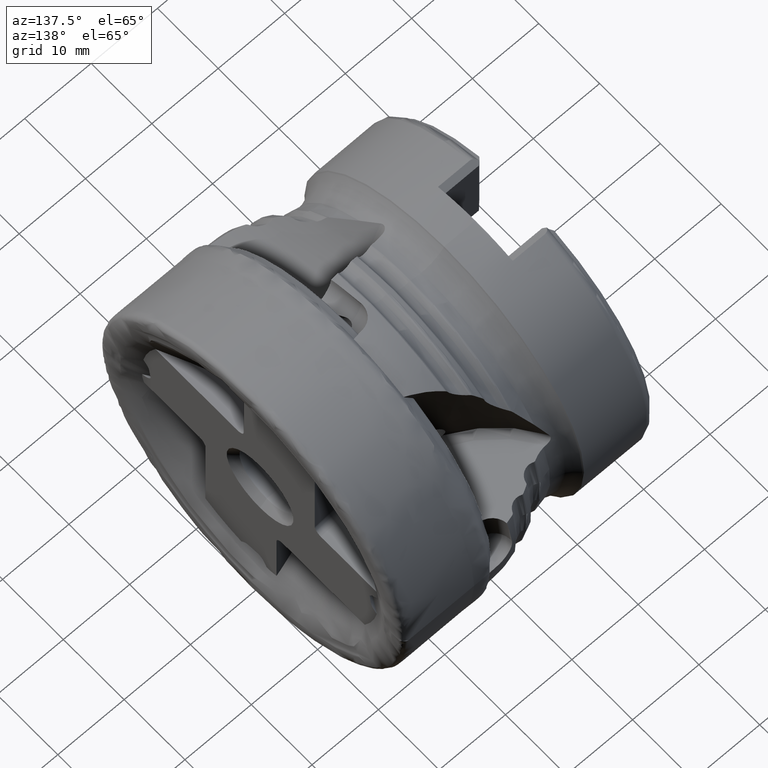
[diagram: clean part render]
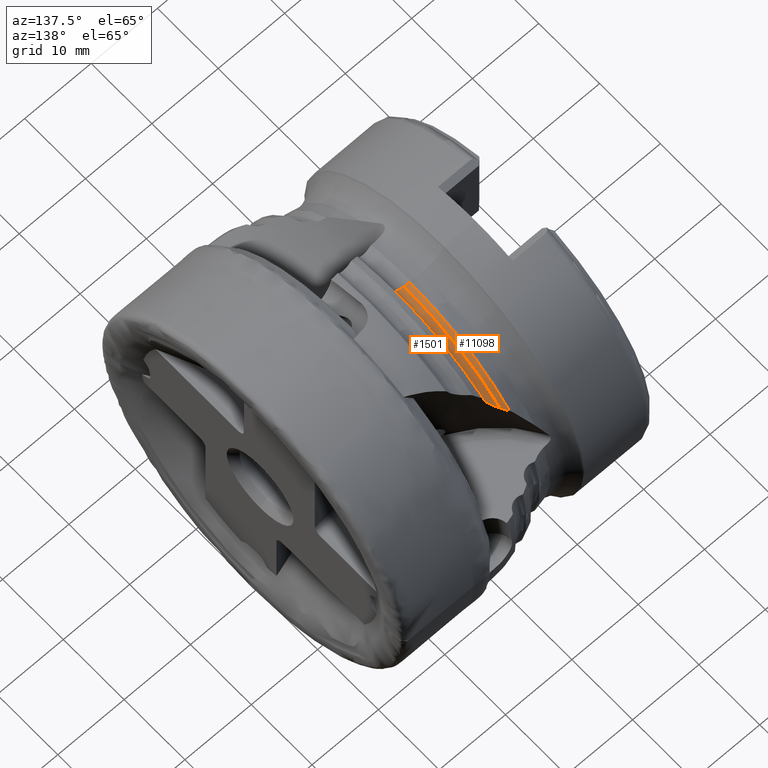
[diagram: same view with one multi-face feature highlighted, each face labeled with its STEP entity id]
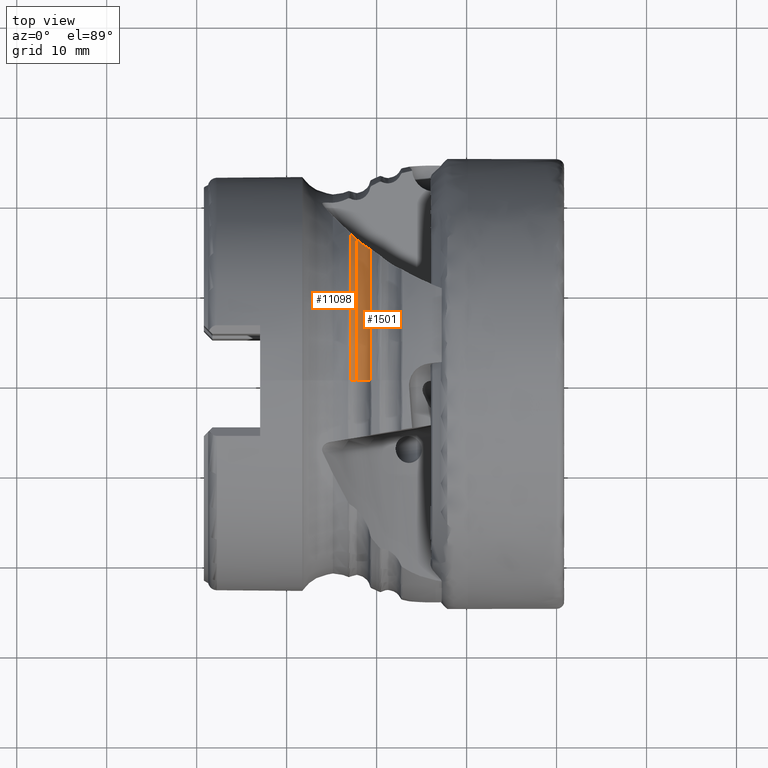
[diagram: same view with one multi-face feature highlighted, each face labeled with its STEP entity id]
A machine part, auxiliary view. The highlighted faces form ONE feature: a constant-radius fillet chain: 2 tangent blend faces with common blend radius 1.5 mm. The faces share edges in the B-rep.
A second angle (top view) of the same feature is appended — it is thin or edge-on in the first view.
Their STEP definitions:
[1] entity #11098 (Torus):
#188 = FACE_OUTER_BOUND ( 'NONE', #13282, .T. ) ;
#808 = CARTESIAN_POINT ( 'NONE',  ( -22.19999999999999900, 0.0000000000000000000, 22.79900556599802300 ) ) ;
#1005 = VERTEX_POINT ( 'NONE', #4658 ) ;
#1975 = VERTEX_POINT ( 'NONE', #5462 ) ;
#2051 = DIRECTION ( 'NONE',  ( 1.000000000000000000, 0.0000000000000000000, 0.0000000000000000000 ) ) ;
#2073 = ORIENTED_EDGE ( 'NONE', *, *, #7056, .T. ) ;
#2421 = ORIENTED_EDGE ( 'NONE', *, *, #10373, .T. ) ;
#2494 = VERTEX_POINT ( 'NONE', #13317 ) ;
#3203 = DIRECTION ( 'NONE',  ( -1.000000000000000000, -0.0000000000000000000, -0.0000000000000000000 ) ) ;
#3331 = CARTESIAN_POINT ( 'NONE',  ( -22.93453963644931500, 16.56865981876186600, 13.68757135744772800 ) ) ;
#4064 = ORIENTED_EDGE ( 'NONE', *, *, #9474, .T. ) ;
#4518 = CIRCLE ( 'NONE', #5979, 21.29900556599798700 ) ;
#4658 = CARTESIAN_POINT ( 'NONE',  ( -22.19999999999999900, 0.0000000000000000000, 21.29900556599798700 ) ) ;
#5462 = CARTESIAN_POINT ( 'NONE',  ( -22.93453963644934000, 0.0000000000000000000, 21.49116325039382500 ) ) ;
#5566 = DIRECTION ( 'NONE',  ( 0.0000000000000000000, 0.0000000000000000000, -1.000000000000000000 ) ) ;
#5979 = AXIS2_PLACEMENT_3D ( 'NONE', #10231, #3203, #13794 ) ;
#6571 = CARTESIAN_POINT ( 'NONE',  ( -22.19999999999934200, 15.81404140105017600, 14.26757627161177000 ) ) ;
#6820 = CARTESIAN_POINT ( 'NONE',  ( -22.93453963644934000, 0.0000000000000000000, 0.0000000000000000000 ) ) ;
#7056 = EDGE_CURVE ( 'NONE', #1005, #2494, #4518, .T. ) ;
#7058 = CARTESIAN_POINT ( 'NONE',  ( -22.19999999999999900, 0.0000000000000000000, 0.0000000000000000000 ) ) ;
#8053 = CIRCLE ( 'NONE', #12745, 21.49116325039383900 ) ;
#8181 = AXIS2_PLACEMENT_3D ( 'NONE', #808, #10034, #5566 ) ;
#8211 = CARTESIAN_POINT ( 'NONE',  ( -22.93453963644931500, 16.56865981876186600, 13.68757135744772800 ) ) ;
#9036 = CIRCLE ( 'NONE', #8181, 1.500000000000036000 ) ;
#9409 = DIRECTION ( 'NONE',  ( -1.000000000000000000, -0.0000000000000000000, -0.0000000000000000000 ) ) ;
#9474 = EDGE_CURVE ( 'NONE', #1975, #1005, #9036, .T. ) ;
#9639 = B_SPLINE_CURVE_WITH_KNOTS ( 'NONE', 3,
 ( #6571, #10345, #11462, #13817, #14970, #3331 ),
 .UNSPECIFIED., .F., .F.,
 ( 4, 2, 4 ),
 ( 0.003385032374731913500, 0.003988127114663701400, 0.004591221854595488500 ),
 .UNSPECIFIED. ) ;
#10034 = DIRECTION ( 'NONE',  ( 0.0000000000000000000, -1.000000000000000000, 0.0000000000000000000 ) ) ;
#10195 = DIRECTION ( 'NONE',  ( 0.0000000000000000000, 0.0000000000000000000, -1.000000000000000000 ) ) ;
#10231 = CARTESIAN_POINT ( 'NONE',  ( -22.19999999999999900, 0.0000000000000000000, 0.0000000000000000000 ) ) ;
#10345 = CARTESIAN_POINT ( 'NONE',  ( -22.31739353824384200, 15.92345183708093800, 14.14630681896281000 ) ) ;
#10373 = EDGE_CURVE ( 'NONE', #2494, #11698, #9639, .T. ) ;
#10532 = DIRECTION ( 'NONE',  ( 0.0000000000000000000, 0.0000000000000000000, 1.000000000000000000 ) ) ;
#10758 = ORIENTED_EDGE ( 'NONE', *, *, #14323, .T. ) ;
#11098 = ADVANCED_FACE ( 'NONE', ( #188 ), #12684, .F. ) ;
#11462 = CARTESIAN_POINT ( 'NONE',  ( -22.43854113096748600, 16.04109678890830900, 14.03355259538699900 ) ) ;
#11698 = VERTEX_POINT ( 'NONE', #8211 ) ;
#12219 = AXIS2_PLACEMENT_3D ( 'NONE', #7058, #9409, #10532 ) ;
#12684 = TOROIDAL_SURFACE ( 'NONE', #12219, 22.79900556599802300, 1.500000000000037100 ) ;
#12745 = AXIS2_PLACEMENT_3D ( 'NONE', #6820, #2051, #10195 ) ;
#13282 = EDGE_LOOP ( 'NONE', ( #4064, #2073, #2421, #10758 ) ) ;
#13317 = CARTESIAN_POINT ( 'NONE',  ( -22.19999999999934200, 15.81404140105017600, 14.26757627161177000 ) ) ;
#13794 = DIRECTION ( 'NONE',  ( 0.0000000000000000000, 0.0000000000000000000, 1.000000000000000000 ) ) ;
#13817 = CARTESIAN_POINT ( 'NONE',  ( -22.68316768060260500, 16.29094747666817600, 13.83656342281477000 ) ) ;
#14323 = EDGE_CURVE ( 'NONE', #11698, #1975, #8053, .T. ) ;
#14970 = CARTESIAN_POINT ( 'NONE',  ( -22.80722433751099500, 16.42347822279529600, 13.75103948857140100 ) ) ;
[2] entity #1501 (Torus):
#194 = ORIENTED_EDGE ( 'NONE', *, *, #13266, .T. ) ;
#366 = CARTESIAN_POINT ( 'NONE',  ( -20.72600956930858000, 14.75071910376137300, 17.01782750803696900 ) ) ;
#774 = CARTESIAN_POINT ( 'NONE',  ( -21.87754295157609600, 15.52264594600735500, 14.62453193353817400 ) ) ;
#1005 = VERTEX_POINT ( 'NONE', #4658 ) ;
#1187 = ORIENTED_EDGE ( 'NONE', *, *, #3057, .T. ) ;
#1501 = ADVANCED_FACE ( 'NONE', ( #2797 ), #4263, .F. ) ;
#1553 = AXIS2_PLACEMENT_3D ( 'NONE', #5388, #7760, #6673 ) ;
#1645 = ORIENTED_EDGE ( 'NONE', *, *, #4096, .T. ) ;
#1831 = CIRCLE ( 'NONE', #11550, 1.500000000000036000 ) ;
#2494 = VERTEX_POINT ( 'NONE', #13317 ) ;
#2797 = FACE_OUTER_BOUND ( 'NONE', #13842, .T. ) ;
#2972 = DIRECTION ( 'NONE',  ( -1.000000000000000000, -0.0000000000000000000, -0.0000000000000000000 ) ) ;
#3057 = EDGE_CURVE ( 'NONE', #14120, #2494, #9949, .T. ) ;
#3128 = CARTESIAN_POINT ( 'NONE',  ( -22.03534131154063400, 15.66057998256099800, 14.43767140054365900 ) ) ;
#3203 = DIRECTION ( 'NONE',  ( -1.000000000000000000, -0.0000000000000000000, -0.0000000000000000000 ) ) ;
#4096 = EDGE_CURVE ( 'NONE', #5718, #14120, #7350, .T. ) ;
#4102 = DIRECTION ( 'NONE',  ( 0.0000000000000000000, 0.0000000000000000000, -1.000000000000000000 ) ) ;
#4263 = TOROIDAL_SURFACE ( 'NONE', #13369, 22.79900556599802300, 1.500000000000037100 ) ;
#4302 = DIRECTION ( 'NONE',  ( 0.0000000000000000000, 0.0000000000000000000, 1.000000000000000000 ) ) ;
#4518 = CIRCLE ( 'NONE', #5979, 21.29900556599798700 ) ;
#4658 = CARTESIAN_POINT ( 'NONE',  ( -22.19999999999999900, 0.0000000000000000000, 21.29900556599798700 ) ) ;
#5388 = CARTESIAN_POINT ( 'NONE',  ( -20.72600956930750700, 0.0000000000000000000, 0.0000000000000000000 ) ) ;
#5718 = VERTEX_POINT ( 'NONE', #10596 ) ;
#5903 = ORIENTED_EDGE ( 'NONE', *, *, #7056, .F. ) ;
#5979 = AXIS2_PLACEMENT_3D ( 'NONE', #10231, #3203, #13794 ) ;
#6673 = DIRECTION ( 'NONE',  ( 0.0000000000000000000, 0.0000000000000000000, 1.000000000000000000 ) ) ;
#7056 = EDGE_CURVE ( 'NONE', #1005, #2494, #4518, .T. ) ;
#7350 = CIRCLE ( 'NONE', #1553, 22.52088291278414900 ) ;
#7412 = CARTESIAN_POINT ( 'NONE',  ( -22.19999999999999900, 0.0000000000000000000, 0.0000000000000000000 ) ) ;
#7651 = CARTESIAN_POINT ( 'NONE',  ( -22.19999999999934200, 15.81404140105017600, 14.26757627161177000 ) ) ;
#7760 = DIRECTION ( 'NONE',  ( -1.000000000000000000, -0.0000000000000000000, -0.0000000000000000000 ) ) ;
#7813 = CARTESIAN_POINT ( 'NONE',  ( -21.16847485596695600, 14.97179792312505400, 15.70626727748450000 ) ) ;
#8838 = CARTESIAN_POINT ( 'NONE',  ( -20.72600956930858000, 14.75071910376137300, 17.01782750803696900 ) ) ;
#9900 = CARTESIAN_POINT ( 'NONE',  ( -22.19999999999999900, 0.0000000000000000000, 22.79900556599802300 ) ) ;
#9949 = B_SPLINE_CURVE_WITH_KNOTS ( 'NONE', 3,
 ( #8838, #13618, #13517, #14914, #7813, #14708, #13714, #774, #3128, #7651 ),
 .UNSPECIFIED., .F., .F.,
 ( 4, 2, 2, 2, 4 ),
 ( 1.378031271060554800E-006, 0.0008472916171362737400, 0.001693205203001487100, 0.002539118788866700200, 0.003385032374731913500 ),
 .UNSPECIFIED. ) ;
#10231 = CARTESIAN_POINT ( 'NONE',  ( -22.19999999999999900, 0.0000000000000000000, 0.0000000000000000000 ) ) ;
#10596 = CARTESIAN_POINT ( 'NONE',  ( -20.72600956930750700, 0.0000000000000000000, 22.52088291278743500 ) ) ;
#11090 = DIRECTION ( 'NONE',  ( 0.0000000000000000000, -1.000000000000000000, 0.0000000000000000000 ) ) ;
#11550 = AXIS2_PLACEMENT_3D ( 'NONE', #9900, #11090, #4102 ) ;
#13266 = EDGE_CURVE ( 'NONE', #1005, #5718, #1831, .T. ) ;
#13317 = CARTESIAN_POINT ( 'NONE',  ( -22.19999999999934200, 15.81404140105017600, 14.26757627161177000 ) ) ;
#13369 = AXIS2_PLACEMENT_3D ( 'NONE', #7412, #2972, #4302 ) ;
#13517 = CARTESIAN_POINT ( 'NONE',  ( -20.84780192604529200, 14.77970066289857500, 16.46515524435657300 ) ) ;
#13618 = CARTESIAN_POINT ( 'NONE',  ( -20.76700156565522100, 14.74495870397172800, 16.73531996946206800 ) ) ;
#13714 = CARTESIAN_POINT ( 'NONE',  ( -21.57574858786849200, 15.27306086315159700, 15.02843439136742300 ) ) ;
#13794 = DIRECTION ( 'NONE',  ( 0.0000000000000000000, 0.0000000000000000000, 1.000000000000000000 ) ) ;
#13842 = EDGE_LOOP ( 'NONE', ( #5903, #194, #1645, #1187 ) ) ;
#14120 = VERTEX_POINT ( 'NONE', #366 ) ;
#14708 = CARTESIAN_POINT ( 'NONE',  ( -21.43109624539904300, 15.16108755783992900, 15.24700678166342800 ) ) ;
#14914 = CARTESIAN_POINT ( 'NONE',  ( -21.04925242278860200, 14.89332087507241900, 15.94780422182510500 ) ) ;